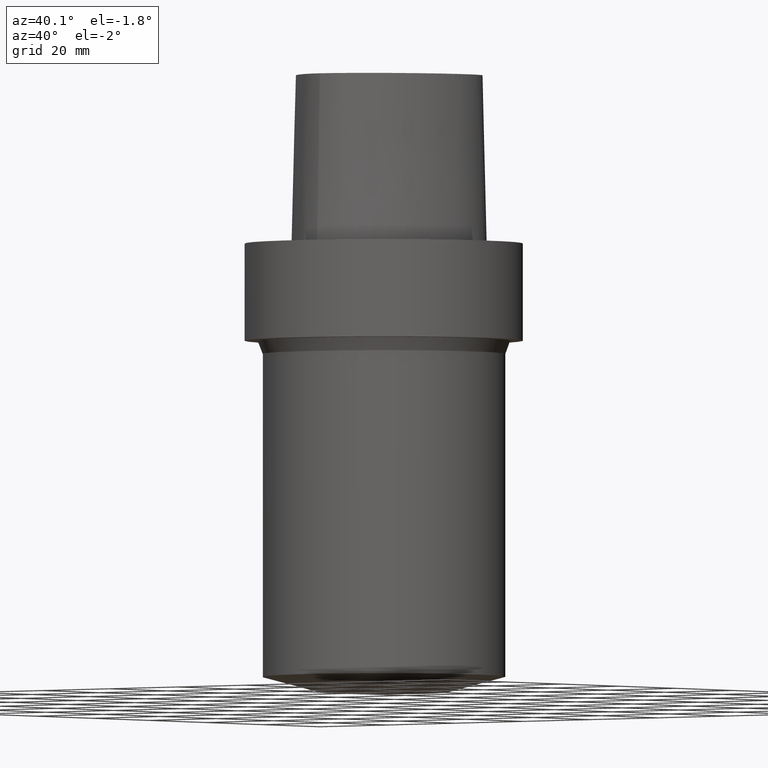
[diagram: clean part render]
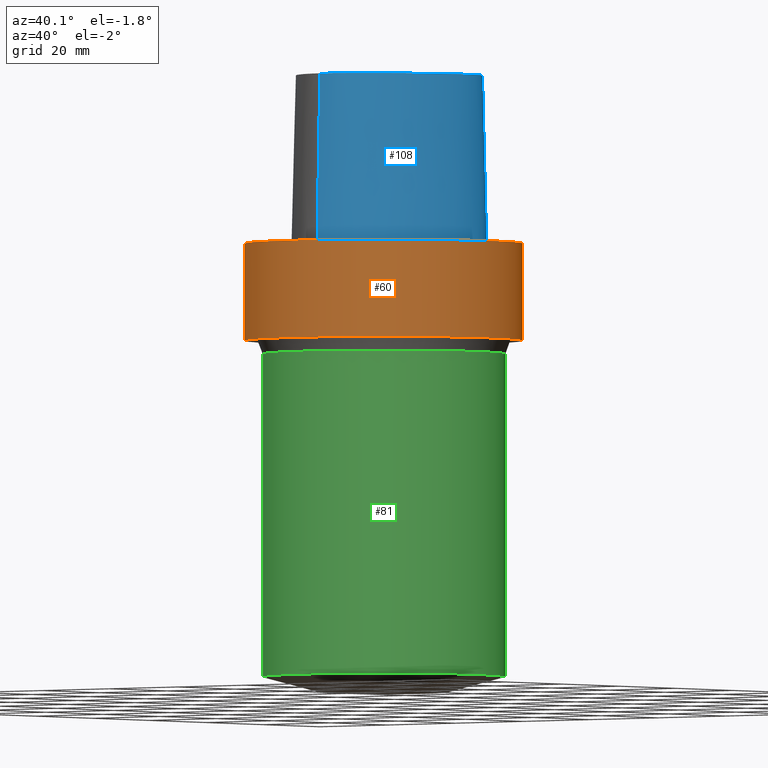
[diagram: same view with three faces highlighted in distinct colors, each labeled with its STEP entity id]
A machine part, auxiliary view with three faces highlighted in distinct colors.
Their STEP definitions:

[orange] entity #60 — the highlighted cylindrical surface (bore or boss wall) has radius 31.5 mm, axis along (0, 0, -1).
#60=ADVANCED_FACE('Unnamed[1]',(#145,#146),#147,.T.);
#62=EDGE_CURVE('Unnamed[1]',#149,#149,#150,.T.);
#85=EDGE_CURVE('Unnamed[1]',#184,#184,#185,.T.);
#145=FACE_BOUND('',#247,.T.);
#146=FACE_BOUND('',#248,.T.);
#147=CYLINDRICAL_SURFACE('',#249,31.4999999999998);
#149=VERTEX_POINT('',#252);
#150=CIRCLE('',#253,31.4999999999998);
#184=VERTEX_POINT('',#368);
#185=CIRCLE('',#369,31.4999999999998);
#247=EDGE_LOOP('',(#571));
#248=EDGE_LOOP('',(#572));
#249=AXIS2_PLACEMENT_3D('',#573,#574,#575);
#252=CARTESIAN_POINT('',(1.34711147906209E-015,31.5,-22.0));
#253=AXIS2_PLACEMENT_3D('',#576,#577,#578);
#368=CARTESIAN_POINT('',(-3.88267476788467E-031,31.5,3.85763741731416E-015));
#369=AXIS2_PLACEMENT_3D('',#608,#609,#610);
#571=ORIENTED_EDGE('',*,*,#62,.F.);
#572=ORIENTED_EDGE('',*,*,#85,.T.);
#573=CARTESIAN_POINT('',(6.73555739531044E-016,1.71847111479062E-013,-11.0));
#574=DIRECTION('',(6.12323399573676E-017,1.22464679914735E-016,-1.0));
#575=DIRECTION('',(-1.23259516440783E-032,1.0,1.22464679914735E-016));
#576=CARTESIAN_POINT('',(1.34711147906209E-015,1.73194222958124E-013,-22.0));
#577=DIRECTION('',(6.12323399573676E-017,1.22464679914735E-016,-1.0));
#578=DIRECTION('',(-1.23259516440783E-032,1.0,1.22464679914735E-016));
#608=CARTESIAN_POINT('',(-2.10157475531535E-045,1.705E-013,2.08802279254624E-029));
#609=DIRECTION('',(6.12323399573676E-017,1.22464679914735E-016,-1.0));
#610=DIRECTION('',(-1.23259516440783E-032,1.0,1.22464679914735E-016));

[blue] entity #108 — the highlighted face is a freeform B-spline surface patch.
#64=EDGE_CURVE('Unnamed[1]',#152,#153,#154,.T.);
#66=EDGE_CURVE('Unnamed[1]',#156,#157,#158,.T.);
#89=EDGE_CURVE('Unnamed[1]',#152,#156,#190,.T.);
#108=ADVANCED_FACE('Unnamed[1]',(#214),#215,.T.);
#110=EDGE_CURVE('Unnamed[1]',#157,#153,#217,.T.);
#152=VERTEX_POINT('',#256);
#153=VERTEX_POINT('',#257);
#154=LINE('',#258,#259);
#156=VERTEX_POINT('',#262);
#157=VERTEX_POINT('',#263);
#158=LINE('',#264,#265);
#190=B_SPLINE_CURVE_WITH_KNOTS('',3,(#376,#377,#378,#379,#380,#381,#382,#383,#384,#385,#386,#387,#388,#389,#390,#391),.UNSPECIFIED.,.F.,.F.,(4,1,1,1,1,1,1,1,1,1,1,1,1,4),(6.61513393087476,6.99917207152274,7.48193246986995,7.96289324787093,8.45540287038584,9.10291653679981,9.67129810936083,10.1618749681153,10.6358867802489,11.1080734988593,11.6043706019633,12.09451993853,12.6985979284494,13.2302678617486),.UNSPECIFIED.);
#214=FACE_OUTER_BOUND('',#456,.T.);
#215=B_SPLINE_SURFACE_WITH_KNOTS('',3,3,((#457,#458,#459,#460),(#461,#462,#463,#464),(#465,#466,#467,#468),(#469,#470,#471,#472),(#473,#474,#475,#476),(#477,#478,#479,#480),(#481,#482,#483,#484),(#485,#486,#487,#488),(#489,#490,#491,#492),(#493,#494,#495,#496),(#497,#498,#499,#500),(#501,#502,#503,#504),(#505,#506,#507,#508),(#509,#510,#511,#512),(#513,#514,#515,#516),(#517,#518,#519,#520),(#521,#522,#523,#524)),.UNSPECIFIED.,.F.,.F.,.F.,(4,1,1,1,1,1,1,1,1,1,1,1,1,1,4),(4,4),(-13.2302678617486,-12.816821991069,-12.4033761203893,-11.9899302497097,-11.57648437903,-11.1630385083504,-10.9563155730106,-10.7495926376707,-10.3361467669911,-9.92270089631145,-9.09580915495216,-8.26891741359287,-7.44202567223358,-7.02857980155394,-6.6151339308743),(-3.8,0.0),.UNSPECIFIED.);
#217=B_SPLINE_CURVE_WITH_KNOTS('',3,(#527,#528,#529,#530,#531,#532,#533,#534,#535,#536,#537,#538,#539,#540,#541,#542,#543),.UNSPECIFIED.,.F.,.F.,(4,1,1,1,1,1,1,1,1,1,1,1,1,1,4),(-13.2302678617486,-12.816821991069,-12.4033761203893,-11.9899302497097,-11.57648437903,-11.1630385083504,-10.9563155730106,-10.7495926376707,-10.3361467669911,-9.92270089631145,-9.09580915495216,-8.26891741359287,-7.44202567223358,-7.02857980155394,-6.6151339308743),.UNSPECIFIED.);
#256=CARTESIAN_POINT('',(0.038736923393866,-22.5191997536361,38.0));
#257=CARTESIAN_POINT('',(0.04359356758149,-23.4691235068931,7.78075697532443E-032));
#258=CARTESIAN_POINT('',(0.038736923393866,-22.5191997536361,38.0));
#259=VECTOR('',#579,38.0118715498723);
#262=CARTESIAN_POINT('',(-0.001218547003662,19.7276821925089,38.0));
#263=CARTESIAN_POINT('',(0.044682985379347,20.6765087343109,1.61778115328528E-031));
#264=CARTESIAN_POINT('',(-0.001218547003662,19.7276821925089,38.0));
#265=VECTOR('',#580,38.0118715503078);
#376=CARTESIAN_POINT('',(0.038736923394311,-22.519199753636,38.0));
#377=CARTESIAN_POINT('',(1.31742058183662,-22.512662269405,38.0));
#378=CARTESIAN_POINT('',(4.2093773447498,-21.9116226439989,38.0));
#379=CARTESIAN_POINT('',(8.20895504542113,-19.7798683845067,38.0));
#380=CARTESIAN_POINT('',(11.9784633234593,-16.681663904162,38.0));
#381=CARTESIAN_POINT('',(15.5308821579362,-12.5807487594113,38.0));
#382=CARTESIAN_POINT('',(18.4566248438667,-7.64932246015528,38.0));
#383=CARTESIAN_POINT('',(20.4036090752029,-2.27012499825289,38.0));
#384=CARTESIAN_POINT('',(21.2357187429189,2.79891401173156,38.0));
#385=CARTESIAN_POINT('',(21.0811206267748,7.62543090736657,38.0));
#386=CARTESIAN_POINT('',(19.3383577336563,12.2772250726194,38.0));
#387=CARTESIAN_POINT('',(15.5796322014404,15.5799672120682,38.0));
#388=CARTESIAN_POINT('',(10.8392956074438,17.9834601687347,38.0));
#389=CARTESIAN_POINT('',(5.56068045850571,19.4586143858472,38.0));
#390=CARTESIAN_POINT('',(1.77223893711014,19.6418877095654,38.0));
#391=CARTESIAN_POINT('',(-0.001218367817519,19.7276822012873,38.0));
#456=EDGE_LOOP('',(#633,#634,#635,#636));
#457=CARTESIAN_POINT('',(-0.001218367817519,19.7276822012873,38.0));
#458=CARTESIAN_POINT('',(0.014082083248157,20.0439577123075,25.3333333333066));
#459=CARTESIAN_POINT('',(0.029382534313671,20.3602332232908,12.6666666666934));
#460=CARTESIAN_POINT('',(0.044682985379347,20.6765087343109,1.61778115328528E-031));
#461=CARTESIAN_POINT('',(1.37788651195108,19.6609652834875,38.0));
#462=CARTESIAN_POINT('',(1.3931885827258,19.9772407169847,25.3333333333066));
#463=CARTESIAN_POINT('',(1.40849065356095,20.2935162254648,12.6666666666934));
#464=CARTESIAN_POINT('',(1.42379272427753,20.6097915814392,8.62816615085482E-032));
#465=CARTESIAN_POINT('',(4.135446440878,19.5347778787784,38.0));
#466=CARTESIAN_POINT('',(4.16466278851883,19.8511031866125,25.3333333333066));
#467=CARTESIAN_POINT('',(4.1938791526746,20.1674284644204,12.6666666666934));
#468=CARTESIAN_POINT('',(4.2230955003445,20.4837538303966,1.4791141972894E-031));
#469=CARTESIAN_POINT('',(8.213607363795,18.7706026638736,38.0));
#470=CARTESIAN_POINT('',(8.29980745008421,19.0767495109635,25.3333333333066));
#471=CARTESIAN_POINT('',(8.38600751285747,19.3828964329996,12.6666666666934));
#472=CARTESIAN_POINT('',(8.47220762821777,19.6890432607088,9.86076131526265E-032));
#473=CARTESIAN_POINT('',(12.1316338645671,17.3698624840857,38.0));
#474=CARTESIAN_POINT('',(12.2591308270381,17.6610739397708,25.3333333333066));
#475=CARTESIAN_POINT('',(12.3866278083543,17.9522853923553,12.6666666666934));
#476=CARTESIAN_POINT('',(12.5141247708253,18.2434968480404,0.0));
#477=CARTESIAN_POINT('',(15.7706546153679,15.3789501349612,38.0));
#478=CARTESIAN_POINT('',(15.9483905900895,15.6437731794811,25.3333333333066));
#479=CARTESIAN_POINT('',(16.1261265513272,15.9085961736944,12.6666666666934));
#480=CARTESIAN_POINT('',(16.3038624872874,16.1734192182143,1.97215226305253E-031));
#481=CARTESIAN_POINT('',(18.4265894256284,13.0570022172893,38.0));
#482=CARTESIAN_POINT('',(18.6659567517146,13.2725589420689,25.3333333333066));
#483=CARTESIAN_POINT('',(18.9053240921419,13.4881156488541,12.6666666666934));
#484=CARTESIAN_POINT('',(19.1446913988473,13.7036723639434,-1.97215226305253E-031));
#485=CARTESIAN_POINT('',(19.8679958653038,10.6923771981998,38.0));
#486=CARTESIAN_POINT('',(20.1559937048299,10.8287388264873,25.3333333333066));
#487=CARTESIAN_POINT('',(20.4439915656177,10.965100461641,12.6666666666934));
#488=CARTESIAN_POINT('',(20.7319894342149,11.1014620996188,0.0));
#489=CARTESIAN_POINT('',(20.8470867582337,8.07149548576131,38.0));
#490=CARTESIAN_POINT('',(21.1591164072431,8.14132775555392,25.3333333333066));
#491=CARTESIAN_POINT('',(21.4711459821861,8.21116003697855,12.6666666666934));
#492=CARTESIAN_POINT('',(21.7831756505763,8.28099229708081,-1.97215226305253E-031));
#493=CARTESIAN_POINT('',(21.2693244256982,4.61157245650171,38.0));
#494=CARTESIAN_POINT('',(21.5881576801997,4.6105997689982,25.3333333333066));
#495=CARTESIAN_POINT('',(21.9069908544037,4.60962709346857,12.6666666666934));
#496=CARTESIAN_POINT('',(22.2258240701438,4.60865440596506,0.0));
#497=CARTESIAN_POINT('',(20.8071610855575,-0.912828649855193,38.0));
#498=CARTESIAN_POINT('',(21.119311671178,-0.979640884839481,25.3333333333066));
#499=CARTESIAN_POINT('',(21.4314624224461,-1.04645306732201,12.6666666666934));
#500=CARTESIAN_POINT('',(21.7436130080666,-1.11326526354485,0.0));
#501=CARTESIAN_POINT('',(18.6841935581315,-7.54428794252837,38.0));
#502=CARTESIAN_POINT('',(18.9734452551861,-7.6809665891091,25.3333333333066));
#503=CARTESIAN_POINT('',(19.2626970689956,-7.81764505382656,12.6666666666934));
#504=CARTESIAN_POINT('',(19.5519487660502,-7.95432366164584,0.0));
#505=CARTESIAN_POINT('',(14.2175552814,-14.5971504342323,38.0));
#506=CARTESIAN_POINT('',(14.4641757465198,-14.8010930946929,25.3333333333066));
#507=CARTESIAN_POINT('',(14.710796247264,-15.0050359737917,12.6666666666934));
#508=CARTESIAN_POINT('',(14.9574167123838,-15.2089785567293,0.0));
#509=CARTESIAN_POINT('',(9.0844808732933,-19.3179298129689,38.0));
#510=CARTESIAN_POINT('',(9.27912152349017,-19.572866915557,25.3333333333066));
#511=CARTESIAN_POINT('',(9.47376218971294,-19.827804295621,12.6666666666934));
#512=CARTESIAN_POINT('',(9.66840283021945,-20.0827414369705,-9.86076131526265E-032));
#513=CARTESIAN_POINT('',(4.17112919194182,-21.8987568152736,38.0));
#514=CARTESIAN_POINT('',(4.28618163483998,-22.1973837173649,25.3333333333066));
#515=CARTESIAN_POINT('',(4.40123406239433,-22.4960105163661,12.6666666666934));
#516=CARTESIAN_POINT('',(4.51628650521788,-22.7946374572188,-9.86076131526265E-032));
#517=CARTESIAN_POINT('',(1.41533654381097,-22.5120888467812,38.0));
#518=CARTESIAN_POINT('',(1.46311520162011,-22.8284916374445,25.3333333333066));
#519=CARTESIAN_POINT('',(1.51089385942236,-23.144894486341,12.6666666666934));
#520=CARTESIAN_POINT('',(1.55867251738073,-23.4612972770043,-1.23259516440783E-032));
#521=CARTESIAN_POINT('',(0.038736923393866,-22.5191997536361,38.0));
#522=CARTESIAN_POINT('',(0.04035580478973,-22.8358410047159,25.3333333333066));
#523=CARTESIAN_POINT('',(0.041974686185626,-23.1524822558133,12.6666666666934));
#524=CARTESIAN_POINT('',(0.04359356758149,-23.4691235068931,7.78075697532443E-032));
#527=CARTESIAN_POINT('',(0.044682985379347,20.6765087343109,1.61778115328528E-031));
#528=CARTESIAN_POINT('',(1.42379272427753,20.6097915814392,8.62816615085482E-032));
#529=CARTESIAN_POINT('',(4.2230955003445,20.4837538303966,1.4791141972894E-031));
#530=CARTESIAN_POINT('',(8.47220762821777,19.6890432607088,9.86076131526265E-032));
#531=CARTESIAN_POINT('',(12.5141247708253,18.2434968480404,0.0));
#532=CARTESIAN_POINT('',(16.3038624872874,16.1734192182143,1.97215226305253E-031));
#533=CARTESIAN_POINT('',(19.1446913988473,13.7036723639434,-1.97215226305253E-031));
#534=CARTESIAN_POINT('',(20.7319894342149,11.1014620996188,0.0));
#535=CARTESIAN_POINT('',(21.7831756505763,8.28099229708081,-1.97215226305253E-031));
#536=CARTESIAN_POINT('',(22.2258240701438,4.60865440596506,0.0));
#537=CARTESIAN_POINT('',(21.7436130080666,-1.11326526354485,0.0));
#538=CARTESIAN_POINT('',(19.5519487660502,-7.95432366164584,0.0));
#539=CARTESIAN_POINT('',(14.9574167123838,-15.2089785567293,0.0));
#540=CARTESIAN_POINT('',(9.66840283021945,-20.0827414369705,-9.86076131526265E-032));
#541=CARTESIAN_POINT('',(4.51628650521788,-22.7946374572188,-9.86076131526265E-032));
#542=CARTESIAN_POINT('',(1.55867251738073,-23.4612972770043,-1.23259516440783E-032));
#543=CARTESIAN_POINT('',(0.04359356758149,-23.4691235068931,7.78075697532443E-032));
#579=DIRECTION('',(0.000127766510556,-0.024990186342461,-0.999687688361864));
#580=DIRECTION('',(0.001207557810519,0.024961321374199,-0.999687688350411));
#633=ORIENTED_EDGE('',*,*,#110,.F.);
#634=ORIENTED_EDGE('',*,*,#66,.F.);
#635=ORIENTED_EDGE('',*,*,#89,.F.);
#636=ORIENTED_EDGE('',*,*,#64,.T.);

[green] entity #81 — the highlighted cylindrical surface (bore or boss wall) has radius 27.5 mm, axis along (0, 0, -1).
#81=ADVANCED_FACE('Unnamed[1]',(#177,#178),#179,.T.);
#95=EDGE_CURVE('Unnamed[1]',#197,#197,#198,.T.);
#112=EDGE_CURVE('Unnamed[1]',#219,#219,#220,.T.);
#177=FACE_BOUND('',#359,.T.);
#178=FACE_BOUND('',#360,.T.);
#179=CYLINDRICAL_SURFACE('',#361,27.4999999999647);
#197=VERTEX_POINT('',#416);
#198=CIRCLE('',#417,27.499999999997);
#219=VERTEX_POINT('',#546);
#220=CIRCLE('',#547,27.4999999999323);
#359=EDGE_LOOP('',(#600));
#360=EDGE_LOOP('',(#601));
#361=AXIS2_PLACEMENT_3D('',#602,#603,#604);
#416=CARTESIAN_POINT('',(1.53080849893427E-015,27.4999999999972,-25.0000000000012));
#417=AXIS2_PLACEMENT_3D('',#617,#618,#619);
#546=CARTESIAN_POINT('',(6.00791271112049E-015,27.4999999999325,-98.1166604984137));
#547=AXIS2_PLACEMENT_3D('',#637,#638,#639);
#600=ORIENTED_EDGE('',*,*,#112,.F.);
#601=ORIENTED_EDGE('',*,*,#95,.T.);
#602=CARTESIAN_POINT('',(3.76936060502738E-015,1.78038721210055E-013,-61.5583302492075));
#603=DIRECTION('',(6.12323399573677E-017,1.22464679914735E-016,-1.0));
#604=DIRECTION('',(-1.23259516440783E-032,1.0,1.22464679914735E-016));
#617=CARTESIAN_POINT('',(1.53080849893427E-015,1.73561616997869E-013,-25.0000000000012));
#618=DIRECTION('',(6.12323399573677E-017,1.22464679914735E-016,-1.0));
#619=DIRECTION('',(-1.23259516440783E-032,1.0,1.22464679914735E-016));
#637=CARTESIAN_POINT('',(6.00791271112049E-015,1.82515825422241E-013,-98.1166604984137));
#638=DIRECTION('',(6.12323399573677E-017,1.22464679914735E-016,-1.0));
#639=DIRECTION('',(-1.23259516440783E-032,1.0,1.22464679914735E-016));